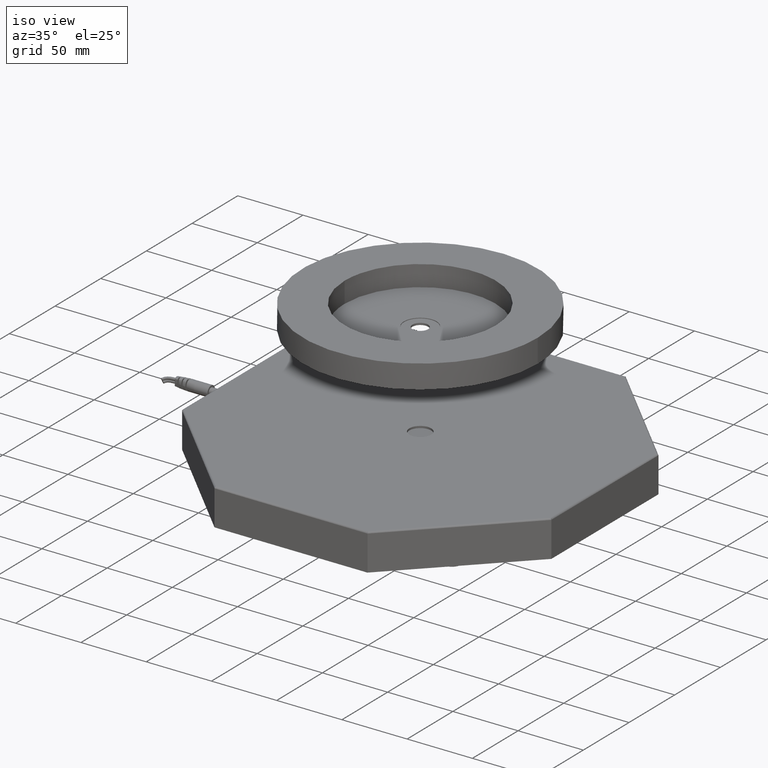
[diagram: clean part render]
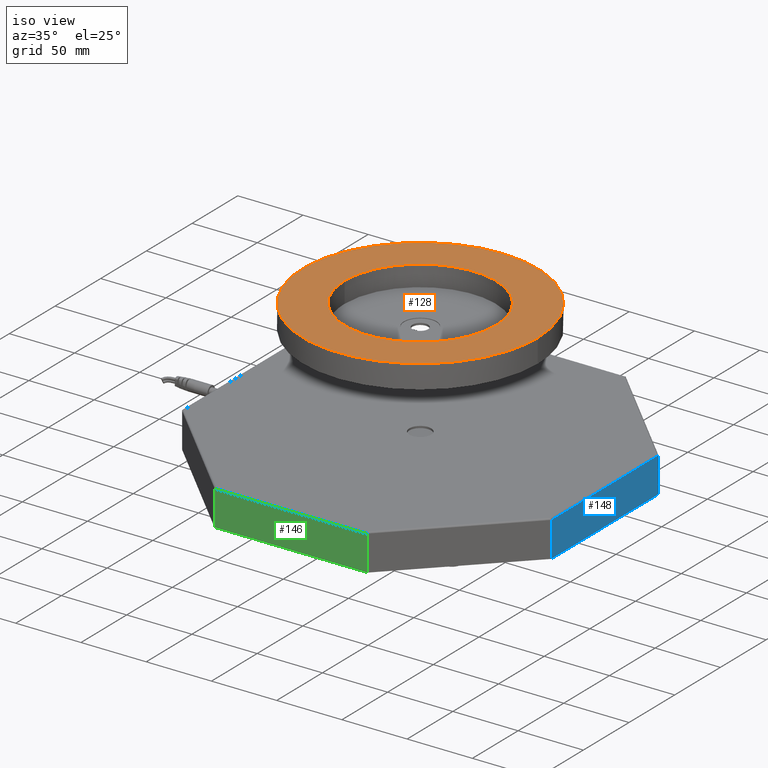
[diagram: same view with three faces highlighted in distinct colors, each labeled with its STEP entity id]
A machine part, iso view with three faces highlighted in distinct colors.
Their STEP definitions:

[orange] entity #128 — the highlighted planar face has unit normal (0, 0, 1).
#128=ADVANCED_FACE('',(#489,#362),#4809,.T.);
#362=FACE_BOUND('',#811,.T.);
#489=FACE_OUTER_BOUND('',#810,.T.);
#810=EDGE_LOOP('',(#1525));
#811=EDGE_LOOP('',(#1526));
#1525=ORIENTED_EDGE('',*,*,#2825,.T.);
#1526=ORIENTED_EDGE('',*,*,#2831,.F.);
#2825=EDGE_CURVE('',#4283,#4283,#3927,.T.);
#2831=EDGE_CURVE('',#4287,#4287,#3931,.T.);
#3927=(
BOUNDED_CURVE()
B_SPLINE_CURVE(2,(#8101,#8102,#8103,#8104,#8105,#8106,#8107,#8108,#8109),
 .UNSPECIFIED.,.T.,.F.)
B_SPLINE_CURVE_WITH_KNOTS((3,2,2,2,3),(0.,141.371669411541,282.743338823081,
424.115008234622,565.486677646163),.UNSPECIFIED.)
CURVE()
GEOMETRIC_REPRESENTATION_ITEM()
RATIONAL_B_SPLINE_CURVE((1.,0.707106781186548,1.,0.707106781186548,1.,0.707106781186548,
1.,0.707106781186548,1.))
REPRESENTATION_ITEM('')
);
#3931=(
BOUNDED_CURVE()
B_SPLINE_CURVE(2,(#8141,#8142,#8143,#8144,#8145,#8146,#8147,#8148,#8149),
 .UNSPECIFIED.,.T.,.F.)
B_SPLINE_CURVE_WITH_KNOTS((3,2,2,2,3),(-364.320693953057,-273.240520464793,
-182.160346976528,-91.0801734882642,0.),.UNSPECIFIED.)
CURVE()
GEOMETRIC_REPRESENTATION_ITEM()
RATIONAL_B_SPLINE_CURVE((1.,0.707106781186548,1.,0.707106781186548,1.,0.707106781186548,
1.,0.707106781186548,1.))
REPRESENTATION_ITEM('')
);
#4283=VERTEX_POINT('',#8085);
#4287=VERTEX_POINT('',#8089);
#4809=PLANE('',#4994);
#4994=AXIS2_PLACEMENT_3D('',#7951,#5164,$);
#5164=DIRECTION('',(0.,0.,1.));
#7951=CARTESIAN_POINT('',(-90.,90.,117.));
#8085=CARTESIAN_POINT('',(90.,0.,117.));
#8089=CARTESIAN_POINT('',(-58.,0.,117.));
#8101=CARTESIAN_POINT('',(90.,0.,117.));
#8102=CARTESIAN_POINT('',(90.,90.,117.));
#8103=CARTESIAN_POINT('',(5.51091059616309E-15,90.,117.));
#8104=CARTESIAN_POINT('',(-90.,90.,117.));
#8105=CARTESIAN_POINT('',(-90.,1.10218211923262E-14,117.));
#8106=CARTESIAN_POINT('',(-90.,-90.,117.));
#8107=CARTESIAN_POINT('',(-1.65327317884893E-14,-90.,117.));
#8108=CARTESIAN_POINT('',(90.,-90.,117.));
#8109=CARTESIAN_POINT('',(90.,0.,117.));
#8141=CARTESIAN_POINT('',(-58.,0.,117.));
#8142=CARTESIAN_POINT('',(-58.,-58.,117.));
#8143=CARTESIAN_POINT('',(-3.55147571752732E-15,-58.,117.));
#8144=CARTESIAN_POINT('',(58.,-58.,117.));
#8145=CARTESIAN_POINT('',(58.,-7.10295143505465E-15,117.));
#8146=CARTESIAN_POINT('',(58.,58.,117.));
#8147=CARTESIAN_POINT('',(1.0654427152582E-14,58.,117.));
#8148=CARTESIAN_POINT('',(-58.,58.,117.));
#8149=CARTESIAN_POINT('',(-58.,0.,117.));

[blue] entity #148 — the highlighted planar face has unit normal (1, 0, 0).
#148=ADVANCED_FACE('',(#509),#4822,.T.);
#509=FACE_OUTER_BOUND('',#870,.T.);
#870=EDGE_LOOP('',(#1755,#1756,#1757,#1758));
#1755=ORIENTED_EDGE('',*,*,#2860,.F.);
#1756=ORIENTED_EDGE('',*,*,#2854,.T.);
#1757=ORIENTED_EDGE('',*,*,#2861,.T.);
#1758=ORIENTED_EDGE('',*,*,#2876,.F.);
#2854=EDGE_CURVE('',#4304,#4303,#3569,.T.);
#2860=EDGE_CURVE('',#4304,#4318,#3575,.T.);
#2861=EDGE_CURVE('',#4303,#4319,#3576,.T.);
#2876=EDGE_CURVE('',#4318,#4319,#3954,.T.);
#3569=B_SPLINE_CURVE_WITH_KNOTS('',1,(#9902,#9903),.UNSPECIFIED.,.F.,.F.,
(2,2),(1289.44681966744,1406.66925781903),.UNSPECIFIED.);
#3575=B_SPLINE_CURVE_WITH_KNOTS('',1,(#9914,#9915),.UNSPECIFIED.,.F.,.F.,
(2,2),(0.,27.),.UNSPECIFIED.);
#3576=B_SPLINE_CURVE_WITH_KNOTS('',1,(#9916,#9917),.UNSPECIFIED.,.F.,.F.,
(2,2),(0.,27.),.UNSPECIFIED.);
#3954=(
BOUNDED_CURVE()
B_SPLINE_CURVE(3,(#9968,#9969,#9970,#9971),.UNSPECIFIED.,.F.,.F.)
B_SPLINE_CURVE_WITH_KNOTS((4,4),(-1.68094704822153E-15,117.222438151586),
 .UNSPECIFIED.)
CURVE()
GEOMETRIC_REPRESENTATION_ITEM()
RATIONAL_B_SPLINE_CURVE((1.,1.,1.,1.))
REPRESENTATION_ITEM('')
);
#4303=VERTEX_POINT('',#9554);
#4304=VERTEX_POINT('',#9555);
#4318=VERTEX_POINT('',#9569);
#4319=VERTEX_POINT('',#9570);
#4822=PLANE('',#5007);
#5007=AXIS2_PLACEMENT_3D('',#8266,#5177,$);
#5177=DIRECTION('',(1.,0.,0.));
#8266=CARTESIAN_POINT('',(141.5,-58.611219075793,0.));
#9554=CARTESIAN_POINT('',(141.5,58.6112190757929,0.));
#9555=CARTESIAN_POINT('',(141.5,-58.611219075793,0.));
#9569=CARTESIAN_POINT('',(141.5,-58.611219075793,27.));
#9570=CARTESIAN_POINT('',(141.5,58.6112190757929,27.));
#9902=CARTESIAN_POINT('',(141.5,-58.611219075793,0.));
#9903=CARTESIAN_POINT('',(141.5,58.6112190757929,0.));
#9914=CARTESIAN_POINT('',(141.5,-58.611219075793,0.));
#9915=CARTESIAN_POINT('',(141.5,-58.611219075793,27.));
#9916=CARTESIAN_POINT('',(141.5,58.6112190757929,0.));
#9917=CARTESIAN_POINT('',(141.5,58.6112190757929,27.));
#9968=CARTESIAN_POINT('',(141.5,-58.611219075793,27.));
#9969=CARTESIAN_POINT('',(141.5,-19.5370730252644,27.));
#9970=CARTESIAN_POINT('',(141.5,19.5370730252643,27.));
#9971=CARTESIAN_POINT('',(141.5,58.6112190757929,27.));

[green] entity #146 — the highlighted planar face has unit normal (0, -1, 0).
#146=ADVANCED_FACE('',(#507),#4820,.T.);
#507=FACE_OUTER_BOUND('',#868,.T.);
#868=EDGE_LOOP('',(#1747,#1748,#1749,#1750));
#1747=ORIENTED_EDGE('',*,*,#2858,.F.);
#1748=ORIENTED_EDGE('',*,*,#2856,.T.);
#1749=ORIENTED_EDGE('',*,*,#2859,.T.);
#1750=ORIENTED_EDGE('',*,*,#2874,.F.);
#2856=EDGE_CURVE('',#4306,#4305,#3571,.T.);
#2858=EDGE_CURVE('',#4306,#4316,#3573,.T.);
#2859=EDGE_CURVE('',#4305,#4317,#3574,.T.);
#2874=EDGE_CURVE('',#4316,#4317,#3952,.T.);
#3571=B_SPLINE_CURVE_WITH_KNOTS('',1,(#9906,#9907),.UNSPECIFIED.,.F.,.F.,
(2,2),(1055.00194336427,1172.22438151586),.UNSPECIFIED.);
#3573=B_SPLINE_CURVE_WITH_KNOTS('',1,(#9910,#9911),.UNSPECIFIED.,.F.,.F.,
(2,2),(0.,27.),.UNSPECIFIED.);
#3574=B_SPLINE_CURVE_WITH_KNOTS('',1,(#9912,#9913),.UNSPECIFIED.,.F.,.F.,
(2,2),(0.,27.),.UNSPECIFIED.);
#3952=(
BOUNDED_CURVE()
B_SPLINE_CURVE(3,(#9960,#9961,#9962,#9963),.UNSPECIFIED.,.F.,.F.)
B_SPLINE_CURVE_WITH_KNOTS((4,4),(-1.84921522539128E-15,117.222438151586),
 .UNSPECIFIED.)
CURVE()
GEOMETRIC_REPRESENTATION_ITEM()
RATIONAL_B_SPLINE_CURVE((1.,1.,1.,1.))
REPRESENTATION_ITEM('')
);
#4305=VERTEX_POINT('',#9556);
#4306=VERTEX_POINT('',#9557);
#4316=VERTEX_POINT('',#9567);
#4317=VERTEX_POINT('',#9568);
#4820=PLANE('',#5005);
#5005=AXIS2_PLACEMENT_3D('',#8264,#5175,$);
#5175=DIRECTION('',(0.,-1.,0.));
#8264=CARTESIAN_POINT('',(-58.611219075793,-141.5,0.));
#9556=CARTESIAN_POINT('',(58.611219075793,-141.5,0.));
#9557=CARTESIAN_POINT('',(-58.611219075793,-141.5,0.));
#9567=CARTESIAN_POINT('',(-58.611219075793,-141.5,27.));
#9568=CARTESIAN_POINT('',(58.6112190757929,-141.5,27.));
#9906=CARTESIAN_POINT('',(-58.611219075793,-141.5,0.));
#9907=CARTESIAN_POINT('',(58.611219075793,-141.5,0.));
#9910=CARTESIAN_POINT('',(-58.611219075793,-141.5,0.));
#9911=CARTESIAN_POINT('',(-58.611219075793,-141.5,27.));
#9912=CARTESIAN_POINT('',(58.611219075793,-141.5,0.));
#9913=CARTESIAN_POINT('',(58.6112190757929,-141.5,27.));
#9960=CARTESIAN_POINT('',(-58.611219075793,-141.5,27.));
#9961=CARTESIAN_POINT('',(-19.5370730252643,-141.5,27.));
#9962=CARTESIAN_POINT('',(19.5370730252643,-141.5,27.));
#9963=CARTESIAN_POINT('',(58.6112190757929,-141.5,27.));